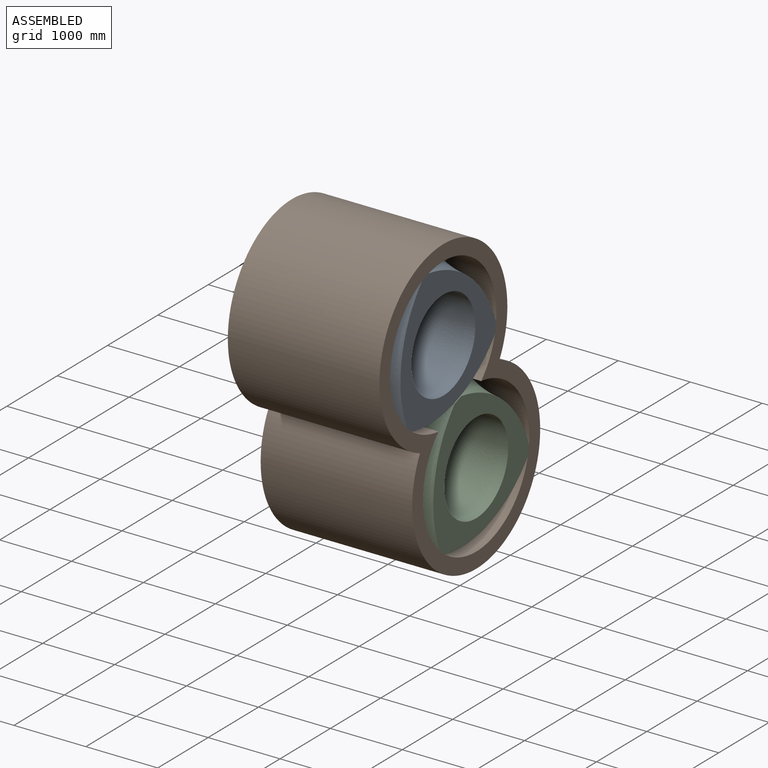
[diagram: assembled view]
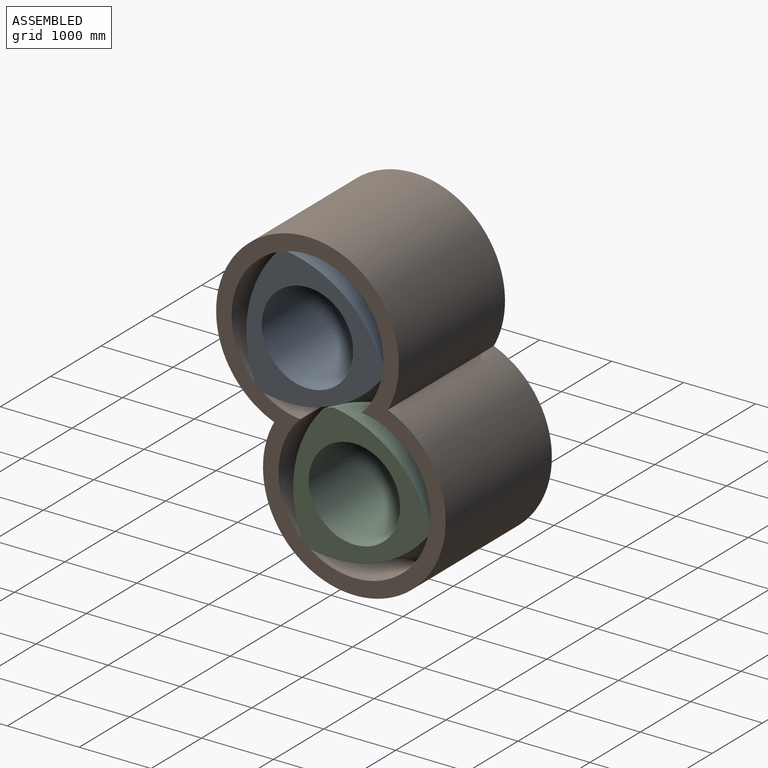
[diagram: assembled view, second angle]
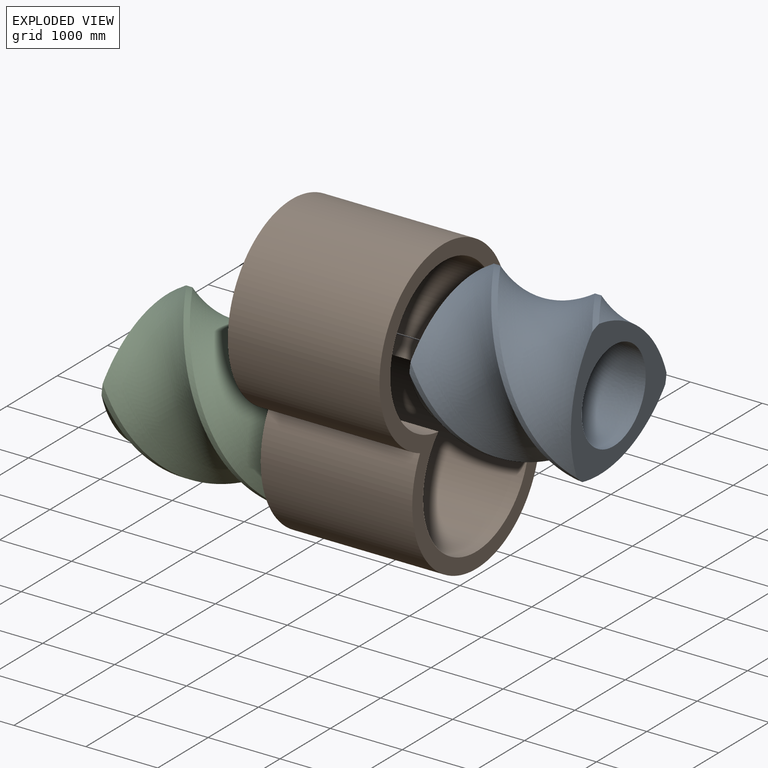
[diagram: exploded view]
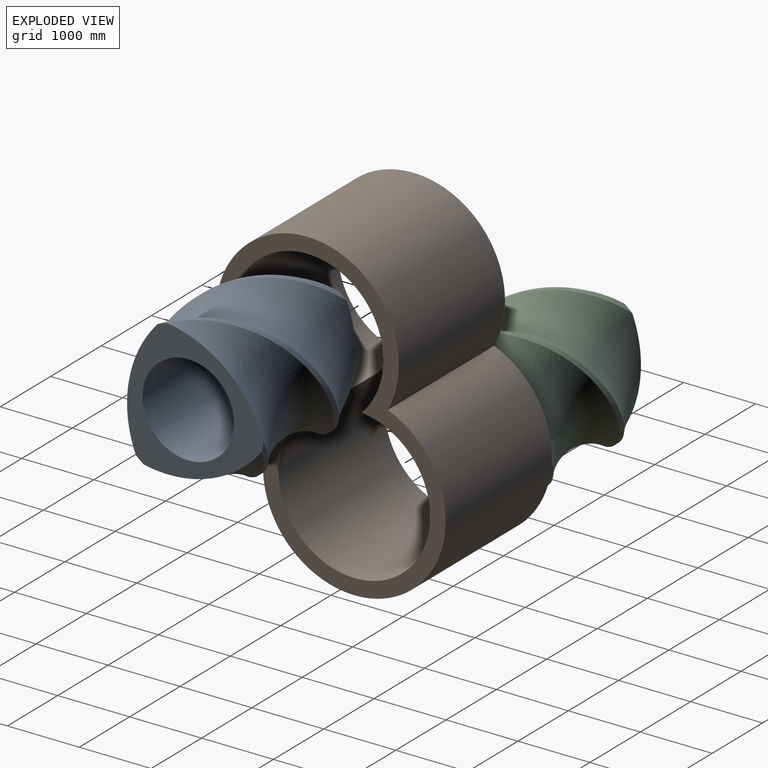
[diagram: exploded view, second angle]
ASSEMBLY  parts=3 mates=2
PART A: 9 faces, bbox 2844.6x2840.1x2186.3 mm
  f0: bspline ~2186.28x2111.69mm, area 4155573.8mm2, adj f1,f5,f6,f7
  f1: bspline ~2186.28x2050.3mm, area 297262.7mm2, adj f0,f2,f6,f7
  f2: bspline ~2186.28x2111.69mm, area 4155573.8mm2, adj f1,f3,f6,f7
  f3: bspline ~2186.28x2112.51mm, area 297262.7mm2, adj f2,f4,f6,f7
  f4: bspline ~2186.28x2109.19mm, area 4155573.8mm2, adj f3,f5,f6,f7
  f5: bspline ~2186.28x2002.73mm, area 297262.7mm2, adj f0,f4,f6,f7
  f6: plane 1894.19x1892.3mm, normal (0,0,-1), area 1392382.1mm2, adj f0,f1,f2,f3,f4,f5,f8
  f7: plane 1894.19x1892.3mm, normal (0,0,1), area 1392382.1mm2, adj f0,f1,f2,f3,f4,f5,f8
  f8: bspline ~2844.61x2840.1mm, area 8409491mm2, adj f6,f7
PART B: 6 faces, bbox 4445x2540x2108.2 mm
  f0: cylinder r=1270mm len=2540mm, axis (0,0,-1), area 12952570.7mm2, adj f3,f4,f5
  f1: cylinder r=1054.1mm len=2108.2mm, axis (0,0,-1), area 11995415.3mm2, adj f2,f4,f5
  f2: cylinder r=1054.1mm len=2108.2mm, axis (0,0,-1), area 11995415.3mm2, adj f1,f4,f5
  f3: cylinder r=1270mm len=2540mm, axis (0,0,-1), area 12952570.7mm2, adj f0,f4,f5
  f4: plane 4445x2540mm, normal (0,0,1), area 2545149.3mm2, adj f0,f1,f2,f3
  f5: plane 4445x2540mm, normal (0,0,-1), area 2545149.3mm2, adj f0,f1,f2,f3
PART C: same geometry as A
PLACE A rot(axis=(-0.5,-0.71,0.5),109.2deg) t=(0,672.97,1902.18)mm
PLACE B rot(axis=(0.17,0.97,0.17),91.7deg) t=(-2108.2,672.97,1902.18)mm
PLACE C rot(axis=(0.63,0.44,0.63),132.1deg) t=(-2108.2,1324.52,112.06)mm
MATE cylindrical A.f7 <-> B.f1  axis (-1,0,0) through (-2108.2,672.97,1902.18)mm
MATE revolute B.f2 <-> C.f7  axis (-1,0,0) through (0,1324.52,112.06)mm
